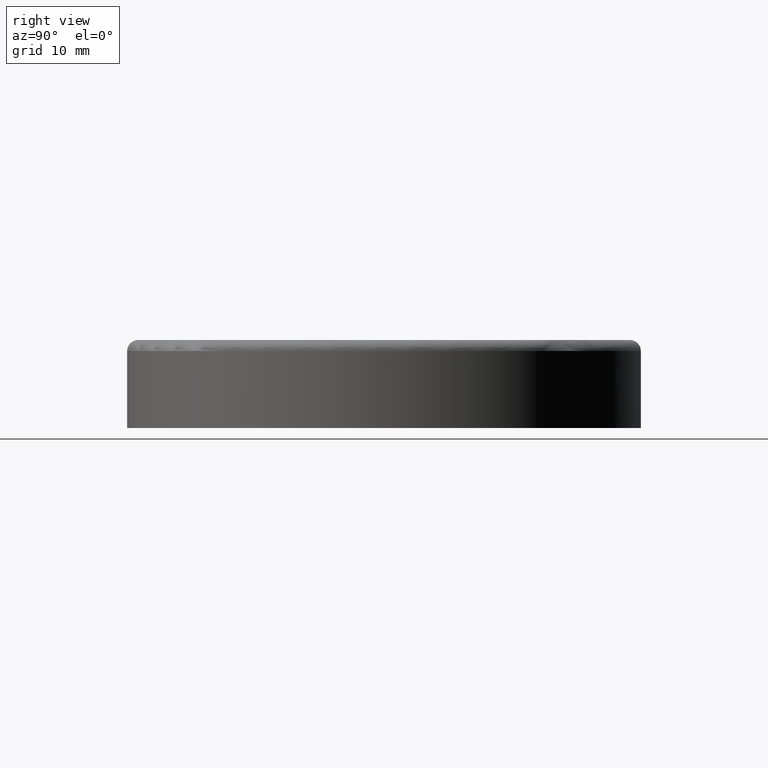
[diagram: clean part render]
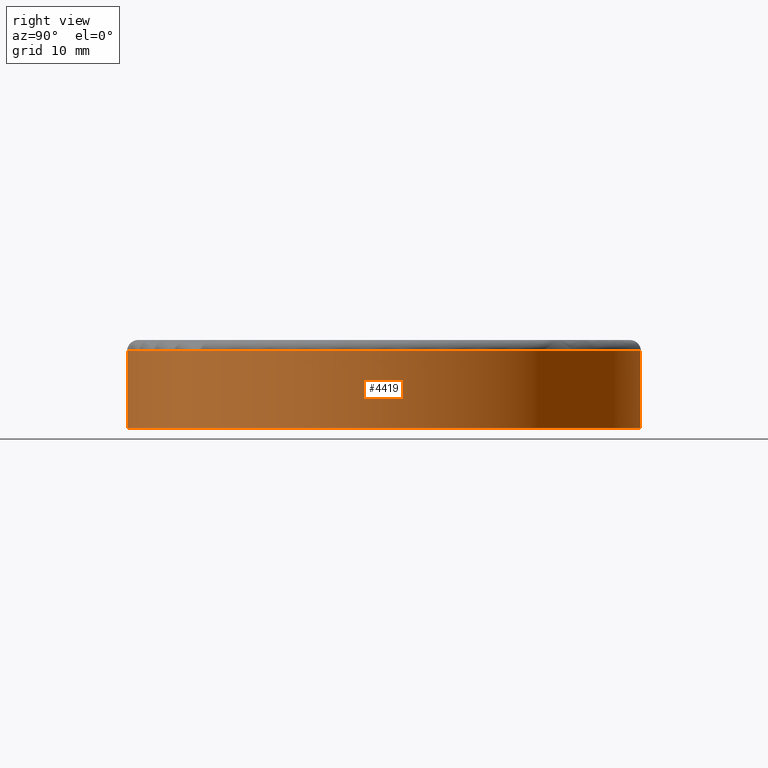
[diagram: same view with one face highlighted and labeled with its STEP entity id]
A machine part, right view. The second image highlights one B-rep face of the part: STEP entity #4419.
In plain terms, the highlighted cylindrical surface (partial cylindrical patch) has radius 35 mm, axis along (-0, 0, -1).
Its self-contained STEP definition (entity closure, byte-faithful):
#12 = VERTEX_POINT ( 'NONE', #9346 ) ;
#65 = CARTESIAN_POINT ( 'NONE',  ( 0.000000000000000000, 0.000000000000000000, 0.000000000000000000 ) ) ;
#188 = ORIENTED_EDGE ( 'NONE', *, *, #9548, .T. ) ;
#576 = CARTESIAN_POINT ( 'NONE',  ( 4.286263797015737285E-15, -35.00000000000000000, 10.50000000000000000 ) ) ;
#2433 = VECTOR ( 'NONE', #7477, 1000.000000000000000 ) ;
#2820 = VECTOR ( 'NONE', #8638, 1000.000000000000000 ) ;
#2885 = DIRECTION ( 'NONE',  ( 0.000000000000000000, 1.000000000000000000, 9.912705577010326782E-17 ) ) ;
#2961 = LINE ( 'NONE', #14450, #2433 ) ;
#3416 = AXIS2_PLACEMENT_3D ( 'NONE', #5751, #7394, #8832 ) ;
#4019 = CARTESIAN_POINT ( 'NONE',  ( 0.000000000000000000, -1.285879139104721619E-15, 10.50000000000000355 ) ) ;
#4210 = VERTEX_POINT ( 'NONE', #576 ) ;
#4297 = LINE ( 'NONE', #9811, #2820 ) ;
#4419 = ADVANCED_FACE ( 'NONE', ( #6284 ), #11379, .T. ) ;
#4572 = VERTEX_POINT ( 'NONE', #11401 ) ;
#4603 = ORIENTED_EDGE ( 'NONE', *, *, #11784, .F. ) ;
#4936 = DIRECTION ( 'NONE',  ( 0.000000000000000000, 1.000000000000000000, 1.224646799147353454E-16 ) ) ;
#4967 = ORIENTED_EDGE ( 'NONE', *, *, #10425, .T. ) ;
#5751 = CARTESIAN_POINT ( 'NONE',  ( 0.000000000000000000, -5.249159239316504474E-31, 4.286263797015737285E-15 ) ) ;
#5847 = AXIS2_PLACEMENT_3D ( 'NONE', #4019, #13430, #2885 ) ;
#6209 = CARTESIAN_POINT ( 'NONE',  ( 0.000000000000000000, 35.00000000000000000, 10.50000000000000711 ) ) ;
#6284 = FACE_OUTER_BOUND ( 'NONE', #8591, .T. ) ;
#7394 = DIRECTION ( 'NONE',  ( -0.000000000000000000, 1.224646799147353454E-16, -1.000000000000000000 ) ) ;
#7477 = DIRECTION ( 'NONE',  ( -0.000000000000000000, 1.224646799147353454E-16, -1.000000000000000000 ) ) ;
#8111 = EDGE_CURVE ( 'NONE', #4572, #12, #10623, .T. ) ;
#8591 = EDGE_LOOP ( 'NONE', ( #4967, #188, #9854, #4603 ) ) ;
#8638 = DIRECTION ( 'NONE',  ( -0.000000000000000000, 1.224646799147353454E-16, -1.000000000000000000 ) ) ;
#8832 = DIRECTION ( 'NONE',  ( 0.000000000000000000, 1.000000000000000000, 1.224646799147353454E-16 ) ) ;
#9346 = CARTESIAN_POINT ( 'NONE',  ( 4.286263797015736496E-15, -35.00000000000000000, 0.000000000000000000 ) ) ;
#9548 = EDGE_CURVE ( 'NONE', #4210, #12, #4297, .T. ) ;
#9811 = CARTESIAN_POINT ( 'NONE',  ( 4.286263797015736496E-15, -35.00000000000000000, -4.286263797015737285E-15 ) ) ;
#9854 = ORIENTED_EDGE ( 'NONE', *, *, #8111, .F. ) ;
#10425 = EDGE_CURVE ( 'NONE', #11782, #4210, #10777, .T. ) ;
#10623 = CIRCLE ( 'NONE', #3416, 35.00000000000000000 ) ;
#10777 = CIRCLE ( 'NONE', #5847, 35.00000000000000000 ) ;
#11379 = CYLINDRICAL_SURFACE ( 'NONE', #13400, 35.00000000000000000 ) ;
#11401 = CARTESIAN_POINT ( 'NONE',  ( 0.000000000000000000, 35.00000000000000000, 8.572527594031474570E-15 ) ) ;
#11782 = VERTEX_POINT ( 'NONE', #6209 ) ;
#11784 = EDGE_CURVE ( 'NONE', #11782, #4572, #2961, .T. ) ;
#12024 = DIRECTION ( 'NONE',  ( -0.000000000000000000, 1.224646799147353454E-16, -1.000000000000000000 ) ) ;
#13400 = AXIS2_PLACEMENT_3D ( 'NONE', #65, #12024, #4936 ) ;
#13430 = DIRECTION ( 'NONE',  ( -0.000000000000000000, 1.224646799147353454E-16, -1.000000000000000000 ) ) ;
#14450 = CARTESIAN_POINT ( 'NONE',  ( 0.000000000000000000, 35.00000000000000000, 4.286263797015737285E-15 ) ) ;